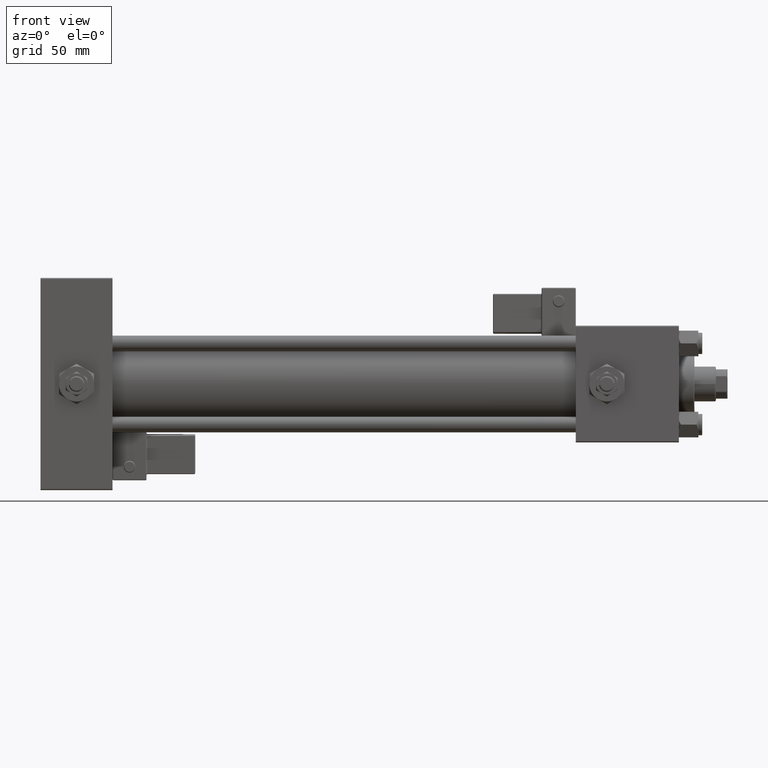
[diagram: clean part render]
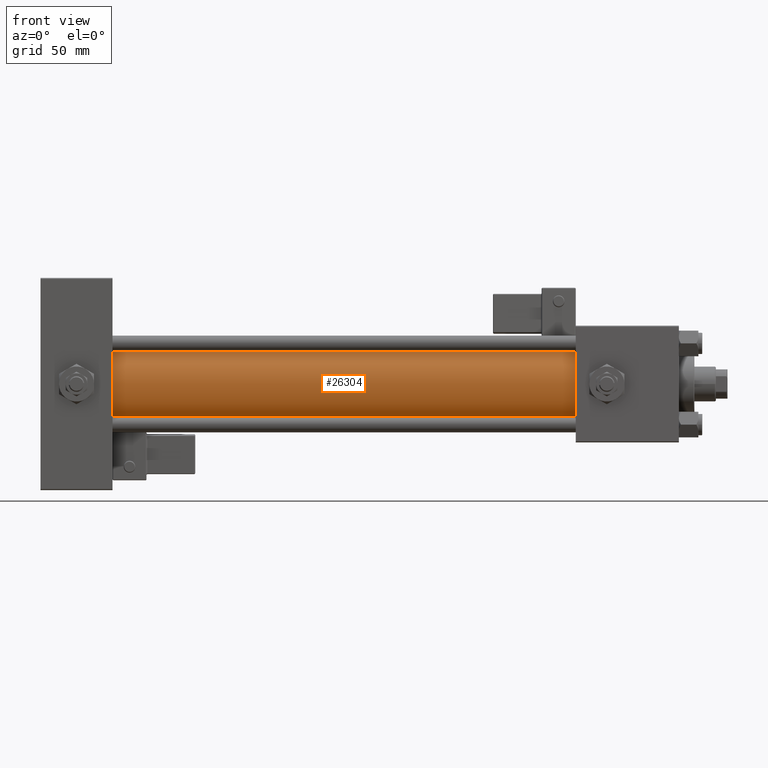
[diagram: same view with one face highlighted and labeled with its STEP entity id]
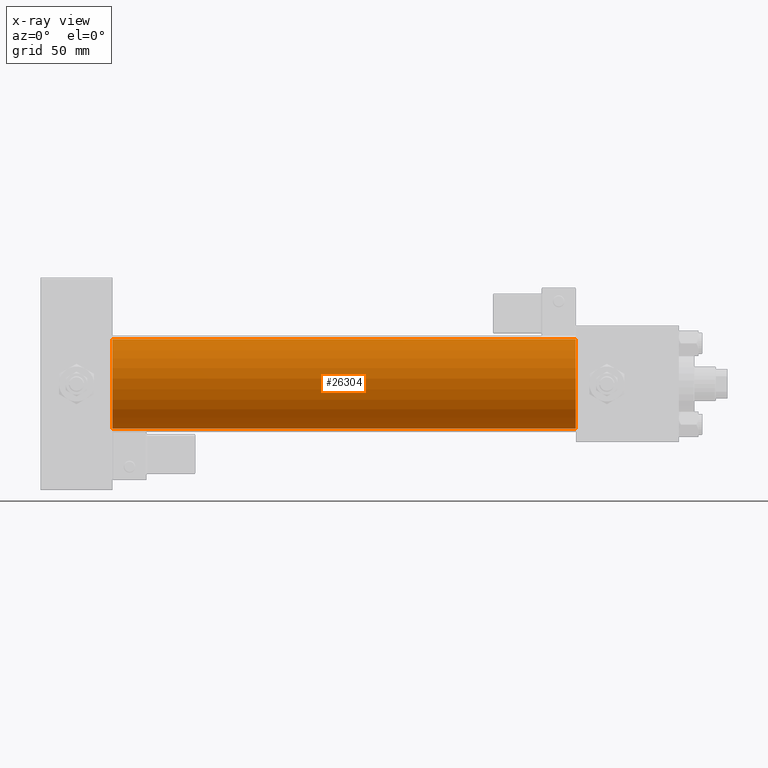
[diagram: x-ray of the same camera — body ghosted, the highlighted face saturated]
A machine part, front view. The second image highlights one B-rep face of the part: STEP entity #26304.
The next image is the same camera in x-ray: the body ghosted, the highlighted face saturated — about 0% of this face is hidden behind the body in this view.
In plain terms, the highlighted cylindrical surface (partial cylindrical patch) has radius 23 mm, axis along (-1, -0, -0).
Its self-contained STEP definition (entity closure, byte-faithful):
#11 = EDGE_LOOP ( 'NONE', ( #28949, #40470, #22956, #46069 ) ) ;
#875 = DIRECTION ( 'NONE',  ( 0.000000000000000000, 0.000000000000000000, 1.000000000000000000 ) ) ;
#6581 = CIRCLE ( 'NONE', #19701, 23.00000000000000000 ) ;
#7807 = EDGE_CURVE ( 'NONE', #52974, #21887, #14810, .T. ) ;
#10434 = LINE ( 'NONE', #30968, #23170 ) ;
#10694 = DIRECTION ( 'NONE',  ( -1.000000000000000000, -0.000000000000000000, -0.000000000000000000 ) ) ;
#11685 = CYLINDRICAL_SURFACE ( 'NONE', #21425, 23.00000000000000000 ) ;
#12992 = EDGE_CURVE ( 'NONE', #27622, #34522, #10434, .T. ) ;
#14259 = DIRECTION ( 'NONE',  ( -1.000000000000000000, -0.000000000000000000, -0.000000000000000000 ) ) ;
#14810 = LINE ( 'NONE', #31502, #45016 ) ;
#18435 = CARTESIAN_POINT ( 'NONE',  ( 37.00000000000000711, -2.602085213965210642E-15, 0.000000000000000000 ) ) ;
#19701 = AXIS2_PLACEMENT_3D ( 'NONE', #18435, #38710, #875 ) ;
#20001 = CARTESIAN_POINT ( 'NONE',  ( 274.9999999999999432, -2.602085213965210642E-15, 23.00000000000000000 ) ) ;
#21425 = AXIS2_PLACEMENT_3D ( 'NONE', #29471, #45409, #41277 ) ;
#21704 = CARTESIAN_POINT ( 'NONE',  ( 37.00000000000000711, 2.146024240737016609E-16, -23.00000000000000000 ) ) ;
#21887 = VERTEX_POINT ( 'NONE', #41813 ) ;
#22956 = ORIENTED_EDGE ( 'NONE', *, *, #7807, .T. ) ;
#23170 = VECTOR ( 'NONE', #10694, 1000.000000000000000 ) ;
#24688 = DIRECTION ( 'NONE',  ( 1.000000000000000000, 0.000000000000000000, 0.000000000000000000 ) ) ;
#24845 = AXIS2_PLACEMENT_3D ( 'NONE', #45547, #24688, #41413 ) ;
#26304 = ADVANCED_FACE ( 'NONE', ( #49249 ), #11685, .T. ) ;
#26801 = EDGE_CURVE ( 'NONE', #21887, #34522, #6581, .T. ) ;
#27622 = VERTEX_POINT ( 'NONE', #28047 ) ;
#28047 = CARTESIAN_POINT ( 'NONE',  ( 274.9999999999999432, 2.146024240737016609E-16, -23.00000000000000000 ) ) ;
#28949 = ORIENTED_EDGE ( 'NONE', *, *, #12992, .F. ) ;
#29471 = CARTESIAN_POINT ( 'NONE',  ( 274.9999999999999432, -2.602085213965210642E-15, 0.000000000000000000 ) ) ;
#30968 = CARTESIAN_POINT ( 'NONE',  ( 274.9999999999999432, 2.146024240737016609E-16, -23.00000000000000000 ) ) ;
#31502 = CARTESIAN_POINT ( 'NONE',  ( 274.9999999999999432, -2.602085213965210642E-15, 23.00000000000000000 ) ) ;
#34522 = VERTEX_POINT ( 'NONE', #21704 ) ;
#38710 = DIRECTION ( 'NONE',  ( 1.000000000000000000, -0.000000000000000000, 0.000000000000000000 ) ) ;
#40470 = ORIENTED_EDGE ( 'NONE', *, *, #44298, .F. ) ;
#41277 = DIRECTION ( 'NONE',  ( 0.000000000000000000, 0.000000000000000000, 1.000000000000000000 ) ) ;
#41413 = DIRECTION ( 'NONE',  ( 0.000000000000000000, 0.000000000000000000, -1.000000000000000000 ) ) ;
#41813 = CARTESIAN_POINT ( 'NONE',  ( 37.00000000000000711, -2.602085213965210642E-15, 23.00000000000000000 ) ) ;
#44298 = EDGE_CURVE ( 'NONE', #52974, #27622, #53784, .T. ) ;
#45016 = VECTOR ( 'NONE', #14259, 1000.000000000000000 ) ;
#45409 = DIRECTION ( 'NONE',  ( -1.000000000000000000, -0.000000000000000000, -0.000000000000000000 ) ) ;
#45547 = CARTESIAN_POINT ( 'NONE',  ( 274.9999999999999432, -2.602085213965210642E-15, 0.000000000000000000 ) ) ;
#46069 = ORIENTED_EDGE ( 'NONE', *, *, #26801, .T. ) ;
#49249 = FACE_OUTER_BOUND ( 'NONE', #11, .T. ) ;
#52974 = VERTEX_POINT ( 'NONE', #20001 ) ;
#53784 = CIRCLE ( 'NONE', #24845, 23.00000000000000000 ) ;